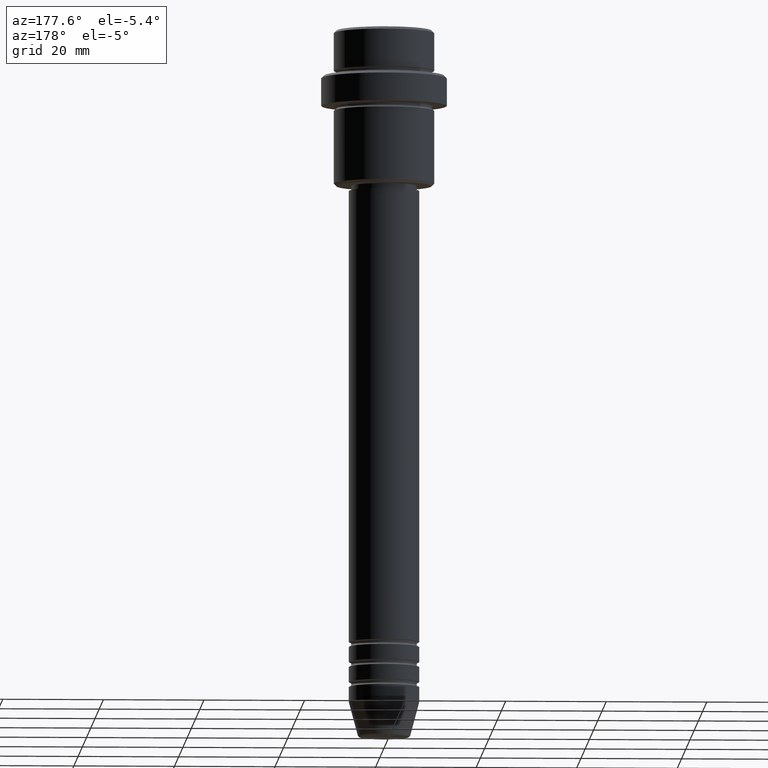
[diagram: clean part render]
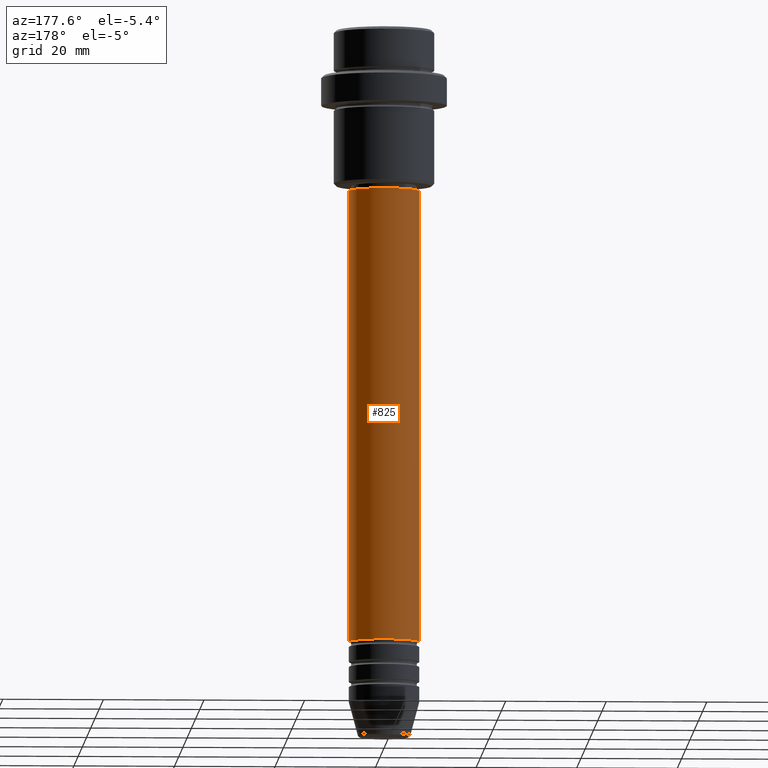
[diagram: same view with one face highlighted and labeled with its STEP entity id]
A machine part, auxiliary view. The second image highlights one B-rep face of the part: STEP entity #825.
In plain terms, the highlighted cylindrical surface (edge-blend (fillet) strip) has radius 7 mm, axis along (-0, -0, 1).
Its self-contained STEP definition (entity closure, byte-faithful):
#13 = DIRECTION ( 'NONE',  ( -0.000000000000000000, -0.000000000000000000, 1.000000000000000000 ) ) ;
#58 = ORIENTED_EDGE ( 'NONE', *, *, #735, .T. ) ;
#79 = CYLINDRICAL_SURFACE ( 'NONE', #1257, 7.000000000000000000 ) ;
#117 = CARTESIAN_POINT ( 'NONE',  ( -7.000000000000000000, 8.572527594031473190E-16, -121.9999999999999005 ) ) ;
#132 = VERTEX_POINT ( 'NONE', #1057 ) ;
#163 = CIRCLE ( 'NONE', #881, 7.000000000000000000 ) ;
#166 = FACE_OUTER_BOUND ( 'NONE', #828, .T. ) ;
#208 = LINE ( 'NONE', #337, #723 ) ;
#337 = CARTESIAN_POINT ( 'NONE',  ( -7.000000000000000000, 8.572527594031473190E-16, 0.000000000000000000 ) ) ;
#345 = CARTESIAN_POINT ( 'NONE',  ( 7.000000000000000000, 0.000000000000000000, -32.00000000000000000 ) ) ;
#420 = CARTESIAN_POINT ( 'NONE',  ( 0.000000000000000000, 0.000000000000000000, -121.9999999999999005 ) ) ;
#422 = ORIENTED_EDGE ( 'NONE', *, *, #938, .F. ) ;
#489 = DIRECTION ( 'NONE',  ( -0.000000000000000000, -0.000000000000000000, 1.000000000000000000 ) ) ;
#497 = VERTEX_POINT ( 'NONE', #117 ) ;
#512 = DIRECTION ( 'NONE',  ( 1.000000000000000000, 0.000000000000000000, 0.000000000000000000 ) ) ;
#604 = ORIENTED_EDGE ( 'NONE', *, *, #892, .T. ) ;
#623 = DIRECTION ( 'NONE',  ( 1.000000000000000000, 0.000000000000000000, 0.000000000000000000 ) ) ;
#654 = LINE ( 'NONE', #866, #1372 ) ;
#679 = CIRCLE ( 'NONE', #975, 7.000000000000000000 ) ;
#705 = VERTEX_POINT ( 'NONE', #1336 ) ;
#706 = DIRECTION ( 'NONE',  ( -0.000000000000000000, -0.000000000000000000, 1.000000000000000000 ) ) ;
#723 = VECTOR ( 'NONE', #1298, 1000.000000000000000 ) ;
#735 = EDGE_CURVE ( 'NONE', #132, #497, #679, .T. ) ;
#743 = EDGE_CURVE ( 'NONE', #1091, #705, #163, .T. ) ;
#821 = DIRECTION ( 'NONE',  ( -0.000000000000000000, -0.000000000000000000, 1.000000000000000000 ) ) ;
#825 = ADVANCED_FACE ( 'NONE', ( #166 ), #79, .T. ) ;
#828 = EDGE_LOOP ( 'NONE', ( #58, #604, #1405, #422 ) ) ;
#866 = CARTESIAN_POINT ( 'NONE',  ( 7.000000000000000000, 0.000000000000000000, 0.000000000000000000 ) ) ;
#881 = AXIS2_PLACEMENT_3D ( 'NONE', #948, #706, #623 ) ;
#892 = EDGE_CURVE ( 'NONE', #497, #705, #208, .T. ) ;
#938 = EDGE_CURVE ( 'NONE', #132, #1091, #654, .T. ) ;
#948 = CARTESIAN_POINT ( 'NONE',  ( 0.000000000000000000, 0.000000000000000000, -32.00000000000000000 ) ) ;
#975 = AXIS2_PLACEMENT_3D ( 'NONE', #420, #489, #1277 ) ;
#1057 = CARTESIAN_POINT ( 'NONE',  ( 7.000000000000000000, 0.000000000000000000, -121.9999999999999005 ) ) ;
#1091 = VERTEX_POINT ( 'NONE', #345 ) ;
#1257 = AXIS2_PLACEMENT_3D ( 'NONE', #1397, #821, #512 ) ;
#1277 = DIRECTION ( 'NONE',  ( 1.000000000000000000, 0.000000000000000000, 0.000000000000000000 ) ) ;
#1298 = DIRECTION ( 'NONE',  ( -0.000000000000000000, -0.000000000000000000, 1.000000000000000000 ) ) ;
#1336 = CARTESIAN_POINT ( 'NONE',  ( -7.000000000000000000, 8.572527594031473190E-16, -32.00000000000000000 ) ) ;
#1372 = VECTOR ( 'NONE', #13, 1000.000000000000000 ) ;
#1397 = CARTESIAN_POINT ( 'NONE',  ( 0.000000000000000000, 0.000000000000000000, 0.000000000000000000 ) ) ;
#1405 = ORIENTED_EDGE ( 'NONE', *, *, #743, .F. ) ;